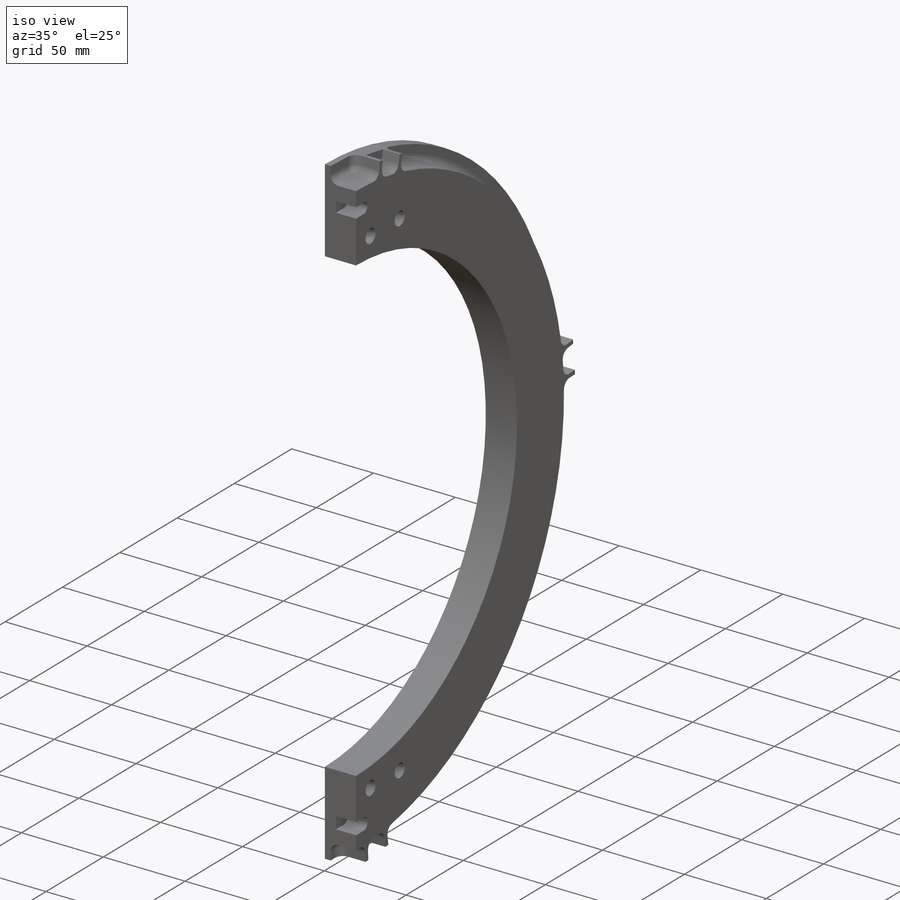
[diagram: iso view]
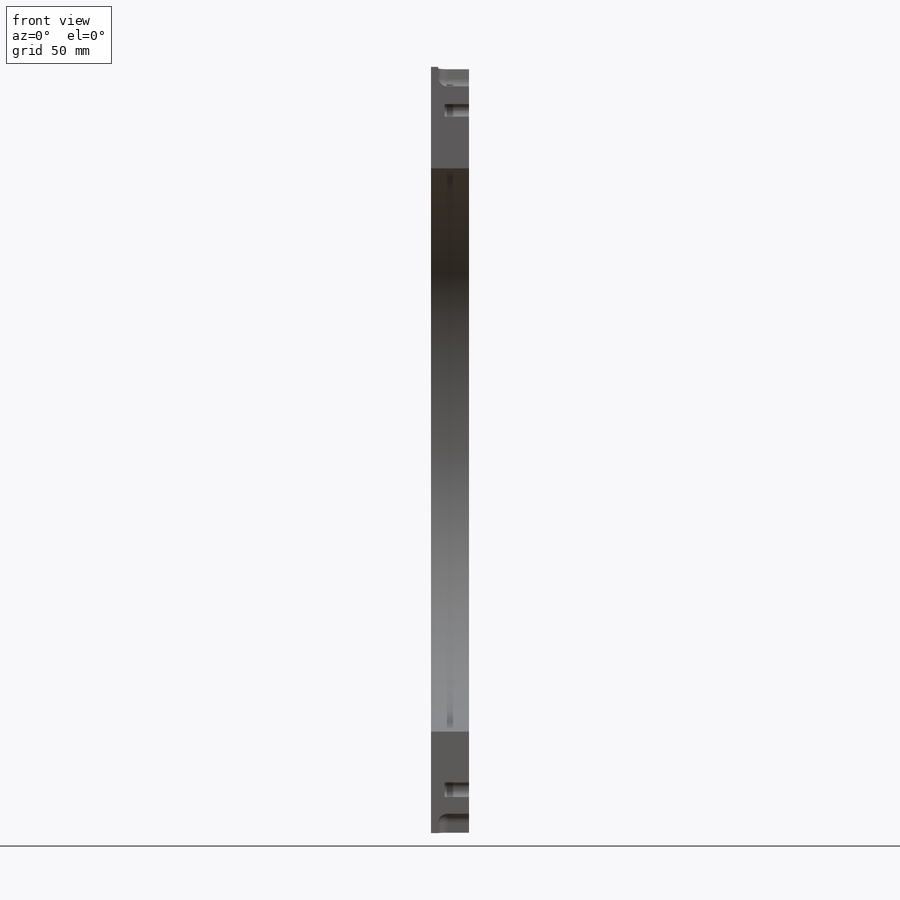
[diagram: front view]
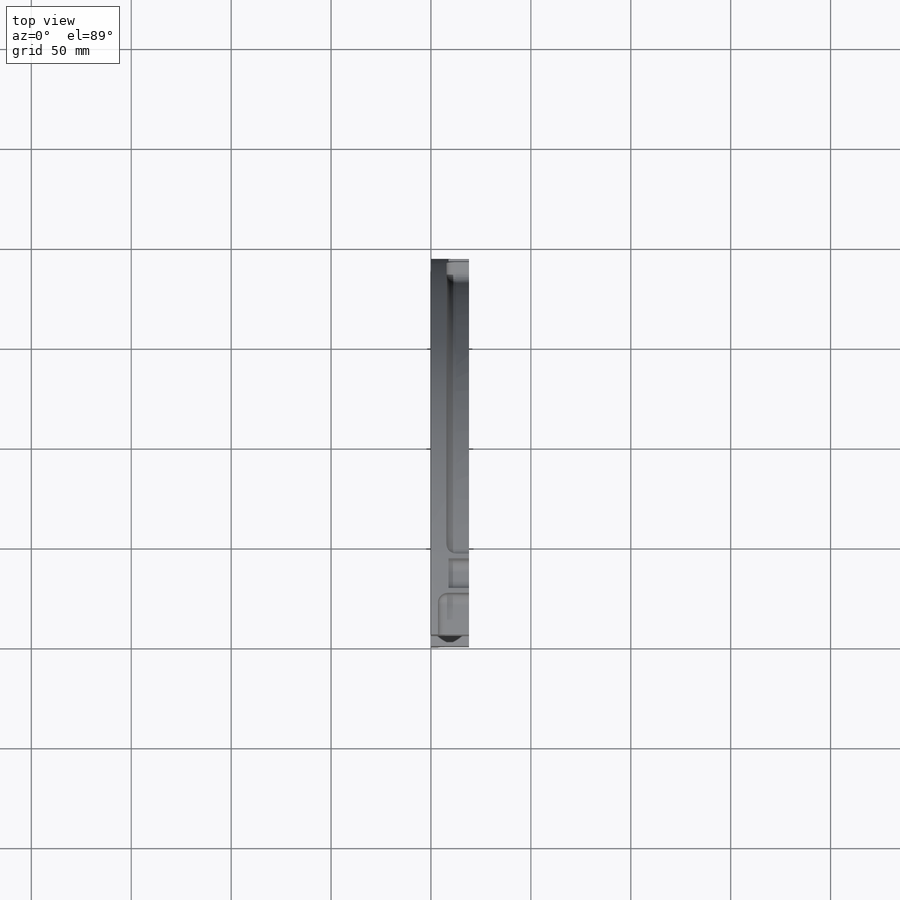
[diagram: top view]
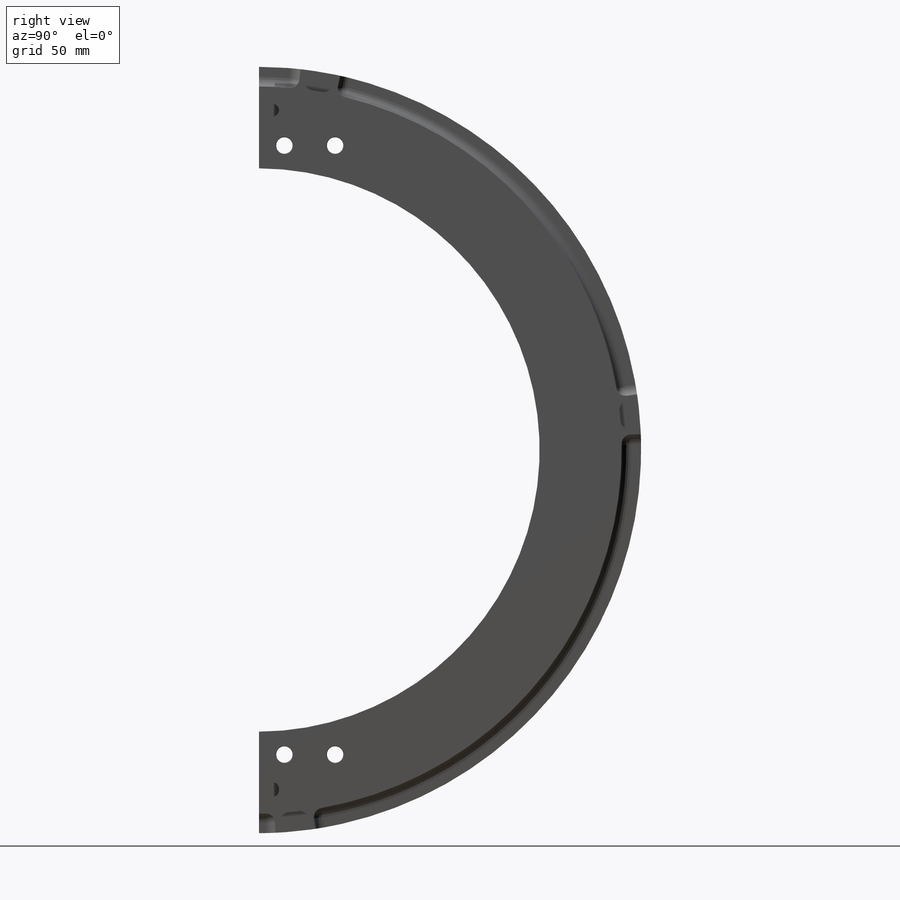
[diagram: right view]
SOLIDWORKS PART (.sldprt)
format: sldprt  version: not decoded by parser v0  size: 779,264 bytes
history: native  units: mm
features: sketch x11, cut_extrude x5, plane x3, fillet x3, hole x2, material x1, extrude x1 + 2 further entries (+12 scaffold rows collapsed)
feature tree (40):
  scaffold x12  (default folders/planes/origin — collapsed)
  material  "Material <not specified>"
  plane  "Plane1"
  plane  "Plane2"
  plane  "Plane3"
  "Axis2"
  "Axis3"
  sketch  "Sketch1"  dims[c1.D9=3.0mm c1.D10=4.0mm c1.D2=6.7625mm c1.D7=4.5mm c1.D1=2.5mm c2.D2=~42.935967mm c3.D2=50.0deg c3.D3=~91.177867mm c4.D2=~100.269623mm c5.D2=~62.654091deg c5.D3=191.2625mm c5.D4=~104.165277mm c5.D5=125.0mm c5.D6=~60.834723mm c6.D4=188.0mm c6.D6=~46.36475mm c6.D1=~5.35288mm c6.D7=14.0mm c7.D1=6.5mm c7.D8=110.0mm c8.D1=~193.33025mm c8.D11=~14.60465mm c8.D6=~57.012213mm c9.D1=~14.686707mm c9.D5=117.5mm c9.D7=1.0mm c10.D5=~120.108474mm c10.D7=~74.340574mm c11.D7=~60.301597deg c11.D1=191.7625mm c11.D3=~57.012213mm c11.D4=~80.17119mm c12.D4=~61.150849deg c12.D5=~3.646559mm c12.D6=115.675mm c12.D7=188.0mm c12.D8=~7.106883mm c12.D2=1.5mm c12.D1=180.0deg c12.D3=50.8mm c13.D4=1.0mm c13.D7=0.0mm]
  sketch  "Sketch81"  dims[D1=430.0mm D2=0.5mm]
  cut_extrude  "Extrude1"  [1 undecoded]
  hole  "5/16 Clearance Hole1"  Diameter=8.2042mm Depth=19.05mm
  sketch  "Sketch84"  dims[c1.D1=304.8mm c1.D2=12.7mm c1.D3=~41.359945mm c2.D2=12.7mm c2.D3=~41.359945mm c3.D2=12.7mm c3.D3=25.4mm]
  sketch  "Sketch83"  dims[hole-wizard template sketch: 48 standard entries collapsed; hole parameters kept: c15.Near C'Sink Dia.=8.636mm c15.D4=~3.666174mm c15.Near C'Sink Angle=90.0deg c15.Far C'Sink Dia.=8.636mm c15.D6=~9.919017mm c15.Far C'Sink Angle=90.0deg]
  hole  "3/16 (0.1875) Diameter Hole1"  Diameter=4.7625mm Depth=19.05mm
  sketch  "Sketch86"
  sketch  "Sketch85"  dims[hole-wizard template sketch: 47 standard entries collapsed; hole parameters kept: c15.Hole Depth=19.05mm c15.D3=~14.816244mm c15.Drill Angle=118.0deg]
  sketch  "Sketch87"  dims[c1.D1=9.8mm c1.D2=~445.737438mm c2.D2=2.6358deg c2.D3=~445.737438mm c3.D3=3.3686deg c3.D4=~445.737438mm c4.D4=7.8814deg c4.D5=~445.737438mm c5.D5=8.6142deg c5.D6=~445.737438mm c6.D6=92.3858deg c6.D7=~445.737438mm c7.D7=93.1186deg c7.D8=~445.737438mm c8.D8=6.3858deg c8.D9=~445.737438mm c9.D9=6.3858deg c10.D9=~445.737438mm c11.D9=12.3642deg c11.D10=~445.737438mm c12.D10=11.6314deg c12.D11=~445.737438mm c13.D11=7.1186deg c13.D12=~445.737438mm c14.D12=81.6358deg c14.D13=~445.737438mm c15.D13=82.3686deg]
  cut_extrude  "Cut-Extrude1"  Depth=11.311296mm
  sketch  "Sketch88"  dims[D1=0.0mm D2=0.0mm]
  cut_extrude  "Cut-Extrude2"  Depth=4.175mm
  sketch  "Sketch89"  dims[D1=0.0mm]
  extrude  "Boss-Extrude1"  Depth=1.064737mm
  fillet  "Fillet1"  Radius=4.7625mm
  fillet  "Fillet2"  Radius=4.7625mm
  sketch  "Sketch90"  dims[D1=10.0mm D2=~6.35254mm D3=170.0mm]
  cut_extrude  "Cut-Extrude3"  Depth=12.24534mm
  sketch  "Sketch91"  dims[D1=0.5mm]
  cut_extrude  "Cut-Extrude4"  [1 undecoded]
  fillet  "Fillet3"  Radius=3.175mm
decode coverage: 19 of 22 modeling features carry decoded parameters; 2 rows unclassified (native names shown)
note: ~ marks probable driven/reference dimensions
note: 2 parameter values undecoded
note: suppression state not decoded; provenance and decode notes live in map.json
